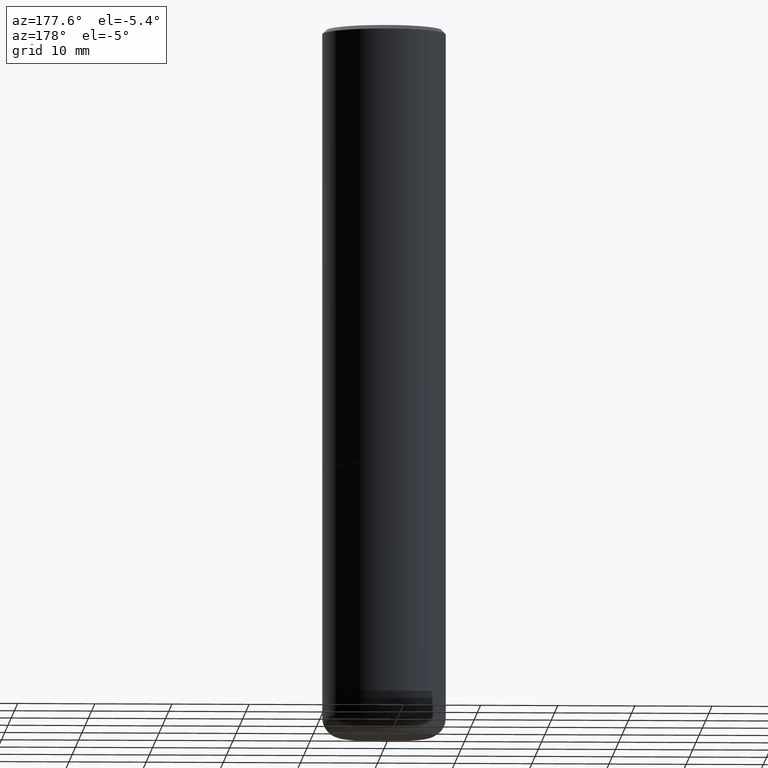
[diagram: clean part render]
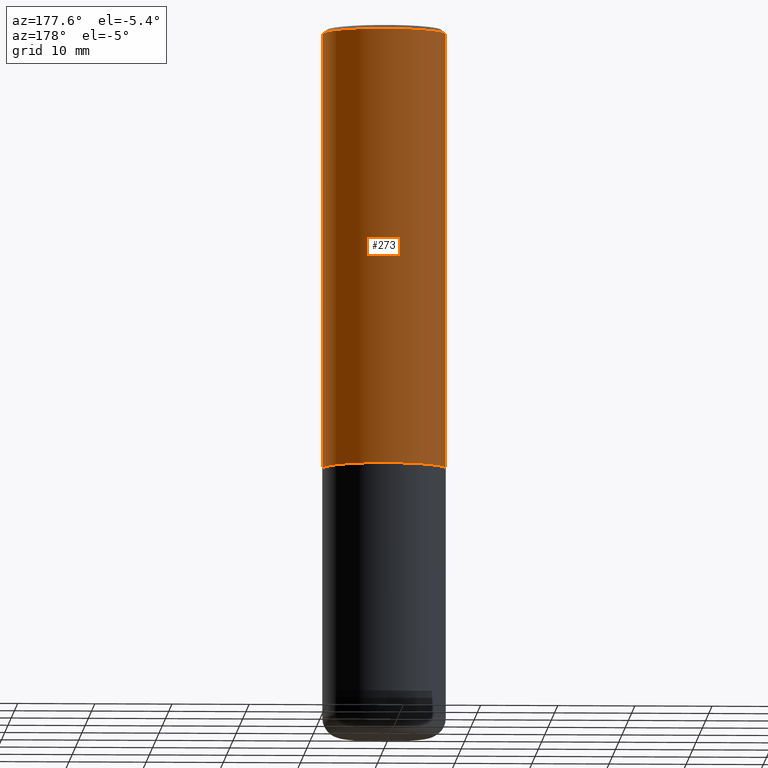
[diagram: same view with one face highlighted and labeled with its STEP entity id]
A machine part, auxiliary view. The second image highlights one B-rep face of the part: STEP entity #273.
In plain terms, the highlighted cylindrical surface (partial cylindrical patch) has radius 7.9997 mm, axis along (-0, 0, 1).
Its self-contained STEP definition (entity closure, byte-faithful):
#8 = CARTESIAN_POINT ( 'NONE',  ( -0.3149500000000002853, -1.712756788624580222E-15, -2.242999999999999883 ) ) ;
#11 = LINE ( 'NONE', #16, #191 ) ;
#16 = CARTESIAN_POINT ( 'NONE',  ( -0.3149500000000001743, 2.237854346276436774E-15, -1.549218606675783237E-29 ) ) ;
#21 = FACE_OUTER_BOUND ( 'NONE', #100, .T. ) ;
#27 = EDGE_CURVE ( 'NONE', #92, #287, #11, .T. ) ;
#31 = DIRECTION ( 'NONE',  ( -2.445468806185136597E-29, 3.491481338843145583E-15, 1.000000000000000000 ) ) ;
#32 = ORIENTED_EDGE ( 'NONE', *, *, #27, .T. ) ;
#33 = DIRECTION ( 'NONE',  ( -2.445468806185136877E-29, 3.491481338843145188E-15, 1.000000000000000000 ) ) ;
#35 = CARTESIAN_POINT ( 'NONE',  ( -0.3149500000000000077, 2.129454468560426573E-15, -0.02000000000000006981 ) ) ;
#45 = ORIENTED_EDGE ( 'NONE', *, *, #363, .F. ) ;
#60 = DIRECTION ( 'NONE',  ( 1.000000000000000000, -6.982962677686265922E-15, 4.876176775795935232E-29 ) ) ;
#62 = VECTOR ( 'NONE', #33, 39.37007874015748143 ) ;
#68 = CARTESIAN_POINT ( 'NONE',  ( 0.3149500000000002853, -1.003067673836246727E-14, -2.242999999999999883 ) ) ;
#69 = EDGE_CURVE ( 'NONE', #361, #287, #226, .T. ) ;
#70 = ORIENTED_EDGE ( 'NONE', *, *, #404, .T. ) ;
#86 = AXIS2_PLACEMENT_3D ( 'NONE', #283, #318, #415 ) ;
#92 = VERTEX_POINT ( 'NONE', #8 ) ;
#100 = EDGE_LOOP ( 'NONE', ( #70, #32, #328, #45 ) ) ;
#108 = VERTEX_POINT ( 'NONE', #68 ) ;
#156 = CARTESIAN_POINT ( 'NONE',  ( 0.3149500000000001743, -2.199284095337290660E-15, 1.535751875536930690E-29 ) ) ;
#174 = DIRECTION ( 'NONE',  ( -2.445468806185136597E-29, 3.491481338843145583E-15, 1.000000000000000000 ) ) ;
#191 = VECTOR ( 'NONE', #267, 39.37007874015748143 ) ;
#193 = CARTESIAN_POINT ( 'NONE',  ( 0.3149500000000000077, -2.230543471175007450E-15, -0.02000000000000006981 ) ) ;
#226 = CIRCLE ( 'NONE', #339, 0.3149500000000000077 ) ;
#244 = AXIS2_PLACEMENT_3D ( 'NONE', #349, #31, #60 ) ;
#267 = DIRECTION ( 'NONE',  ( -2.445468806185136877E-29, 3.491481338843145188E-15, 1.000000000000000000 ) ) ;
#273 = ADVANCED_FACE ( 'NONE', ( #21 ), #280, .T. ) ;
#274 = CIRCLE ( 'NONE', #86, 0.3149500000000002853 ) ;
#280 = CYLINDRICAL_SURFACE ( 'NONE', #244, 0.3149500000000001743 ) ;
#283 = CARTESIAN_POINT ( 'NONE',  ( 5.485186532273261485E-29, -7.831392643025175821E-15, -2.242999999999999883 ) ) ;
#287 = VERTEX_POINT ( 'NONE', #35 ) ;
#299 = DIRECTION ( 'NONE',  ( 1.000000000000000000, -6.982962677686266711E-15, 0.000000000000000000 ) ) ;
#318 = DIRECTION ( 'NONE',  ( -2.445468806185136597E-29, 3.491481338843145583E-15, 1.000000000000000000 ) ) ;
#324 = LINE ( 'NONE', #156, #62 ) ;
#328 = ORIENTED_EDGE ( 'NONE', *, *, #69, .F. ) ;
#333 = CARTESIAN_POINT ( 'NONE',  ( 4.890937612370289799E-31, -6.982962677686315028E-17, -0.02000000000000006981 ) ) ;
#339 = AXIS2_PLACEMENT_3D ( 'NONE', #333, #174, #299 ) ;
#349 = CARTESIAN_POINT ( 'NONE',  ( 0.000000000000000000, 0.000000000000000000, 0.000000000000000000 ) ) ;
#361 = VERTEX_POINT ( 'NONE', #193 ) ;
#363 = EDGE_CURVE ( 'NONE', #108, #361, #324, .T. ) ;
#404 = EDGE_CURVE ( 'NONE', #108, #92, #274, .T. ) ;
#415 = DIRECTION ( 'NONE',  ( 1.000000000000000000, -6.982962677686267499E-15, 0.000000000000000000 ) ) ;